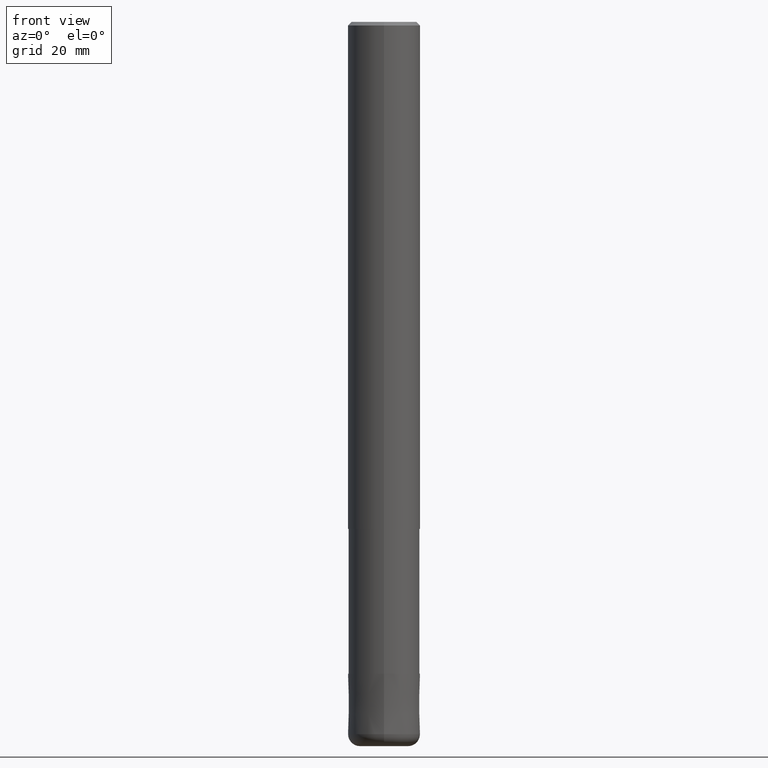
[diagram: clean part render]
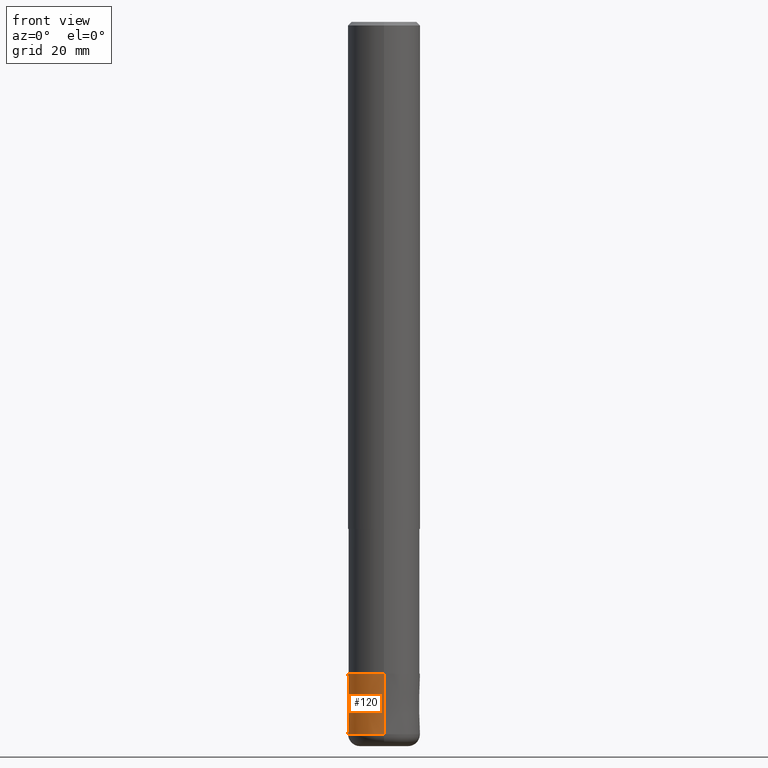
[diagram: same view with one face highlighted and labeled with its STEP entity id]
A machine part, front view. The second image highlights one B-rep face of the part: STEP entity #120.
In plain terms, the highlighted conical surface has half-angle 0.001 deg.
Its self-contained STEP definition (entity closure, byte-faithful):
#102=EDGE_CURVE('',#126,#154,#242,.T.);
#120=ADVANCED_FACE('',(#263),#264,.T.);
#126=VERTEX_POINT('',#270);
#128=VERTEX_POINT('',#272);
#132=EDGE_CURVE('',#128,#206,#276,.T.);
#146=EDGE_CURVE('',#154,#206,#292,.T.);
#154=VERTEX_POINT('',#300);
#164=EDGE_CURVE('',#128,#126,#310,.T.);
#206=VERTEX_POINT('',#359);
#242=CIRCLE('',#390,5.9999);
#263=FACE_OUTER_BOUND('',#416,.T.);
#264=CONICAL_SURFACE('',#417,5.99995,9.99999999964336E-006);
#270=CARTESIAN_POINT('',(7.34751566229888E-016,-5.9999,-108.0));
#272=CARTESIAN_POINT('',(7.34763812293427E-016,-6.0,-118.0));
#276=CIRCLE('',#430,6.0);
#292=LINE('',#452,#453);
#300=CARTESIAN_POINT('',(0.0,5.9999,-108.0));
#310=LINE('',#478,#479);
#359=CARTESIAN_POINT('',(0.0,6.0,-118.0));
#390=AXIS2_PLACEMENT_3D('',#561,#562,#563);
#416=EDGE_LOOP('',(#604,#605,#606,#607));
#417=AXIS2_PLACEMENT_3D('',#608,#609,#610);
#430=AXIS2_PLACEMENT_3D('',#615,#616,#617);
#452=CARTESIAN_POINT('',(-7.34757689261657E-016,5.99995,-113.0));
#453=VECTOR('',#637,1.0);
#478=CARTESIAN_POINT('',(7.34757689261657E-016,-5.99995,-113.0));
#479=VECTOR('',#651,1.0);
#561=CARTESIAN_POINT('',(0.0,0.0,-108.0));
#562=DIRECTION('',(0.0,0.0,-1.0));
#563=DIRECTION('',(0.0,1.0,0.0));
#604=ORIENTED_EDGE('',*,*,#146,.T.);
#605=ORIENTED_EDGE('',*,*,#132,.F.);
#606=ORIENTED_EDGE('',*,*,#164,.T.);
#607=ORIENTED_EDGE('',*,*,#102,.T.);
#608=CARTESIAN_POINT('',(0.0,0.0,-113.0));
#609=DIRECTION('',(0.0,-0.0,-1.0));
#610=DIRECTION('',(0.0,1.0,0.0));
#615=CARTESIAN_POINT('',(0.0,0.0,-118.0));
#616=DIRECTION('',(0.0,0.0,-1.0));
#617=DIRECTION('',(0.0,1.0,0.0));
#637=DIRECTION('',(-1.22460635375829E-021,9.99999999947669E-006,-0.99999999995));
#651=DIRECTION('',(-1.22460635375829E-021,9.99999999947669E-006,0.99999999995));